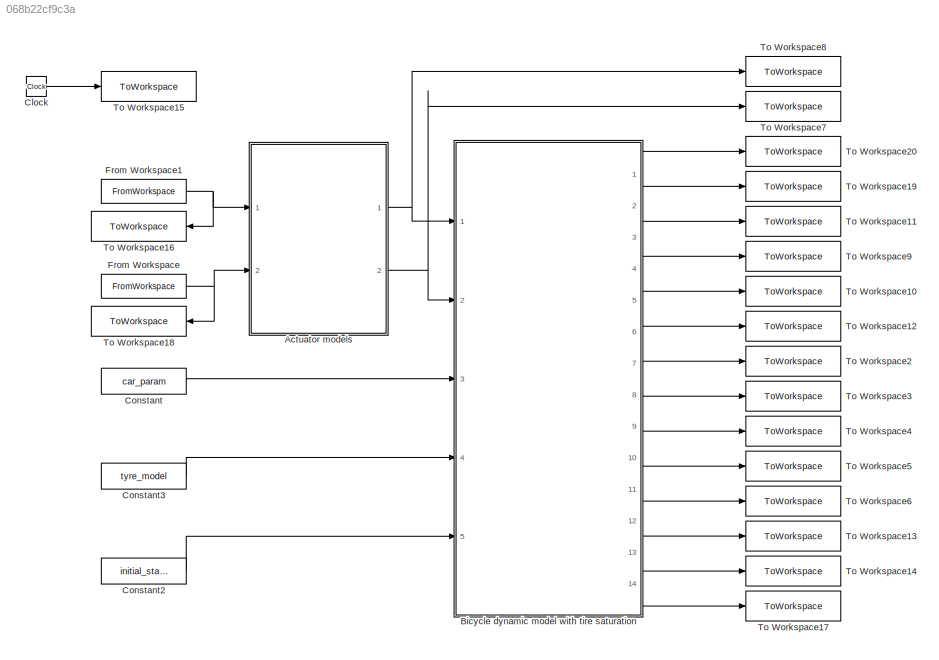
MODEL slx_068b22cf9c3a
KIND model
CONFIG AbsTol = auto
CONFIG EnableMultiTasking = off
CONFIG FixedStep = auto
CONFIG MaxStep = auto
CONFIG MinStep = auto
CONFIG RelTol = 1e-6
CONFIG SampleTimeConstraint = Unconstrained
CONFIG SolverName = ode45
CONFIG StartTime = 0.0
CONFIG StopTime = 25
WORKSPACE source: mxarray member
WORKSPACE Freq = 1
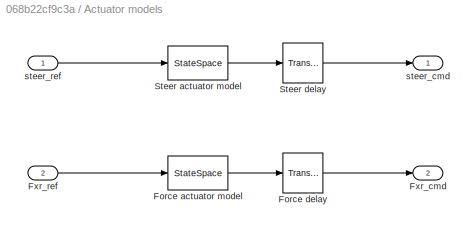
BLOCK [SubSystem] Actuator models
  Ports = [2, 2]
  RequestExecContextInheritance = off
BLOCK [StateSpace] Actuator models/Force actuator model
  A = [0, 1; -wn_force^2, -2*csi_force*wn_force]
  B = [0; mu_force*wn_force^2]
  C = [1, 0]
  D = 0
  InitialCondition = [force_initial, 0]
  Ports = [1, 1]
BLOCK [TransportDelay] Actuator models/Force delay
  DelayTime = tau_force
  InitialOutput = force_initial
  Ports = [1, 1]
BLOCK [Outport] Actuator models/Fxr_cmd
  Port = 2
BLOCK [Inport] Actuator models/Fxr_ref
  Port = 2
BLOCK [StateSpace] Actuator models/Steer actuator model
  A = [0, 1; -wn_steer^2, -2*csi_steer*wn_steer]
  B = [0; mu_steer*wn_steer^2]
  C = [1, 0]
  D = 0
  InitialCondition = [steer_initial, 0]
  Ports = [1, 1]
BLOCK [TransportDelay] Actuator models/Steer delay
  DelayTime = tau_steer
  InitialOutput = steer_initial
  Ports = [1, 1]
BLOCK [Outport] Actuator models/steer_cmd
BLOCK [Inport] Actuator models/steer_ref
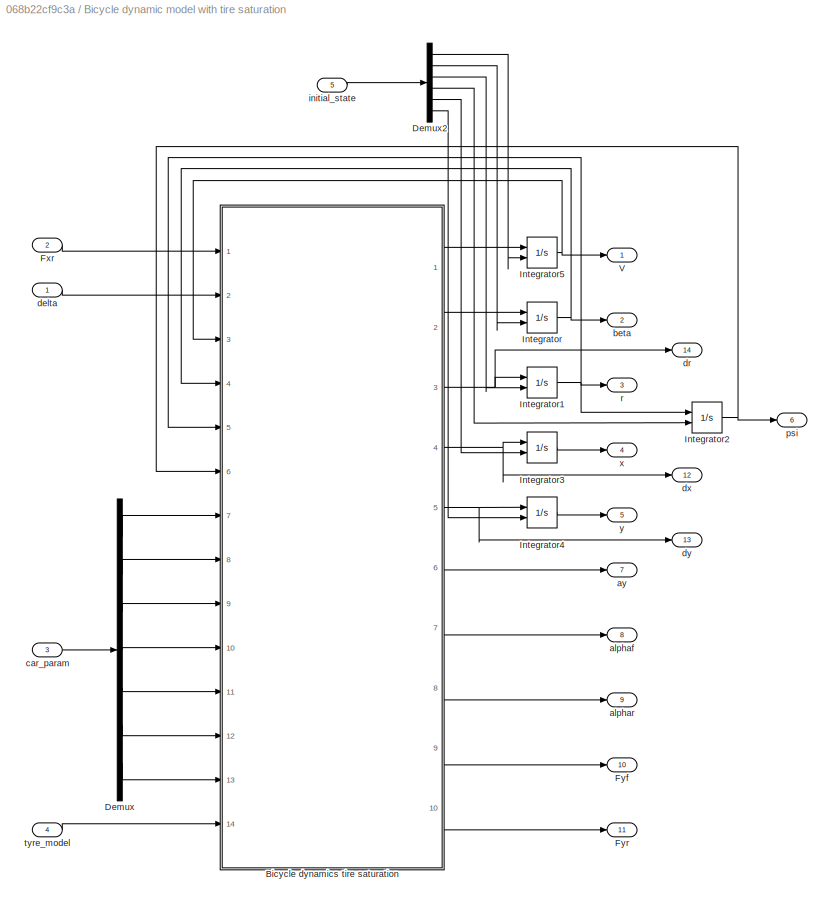
BLOCK [SubSystem] Bicycle dynamic model with tire saturation
  Ports = [5, 14]
  RequestExecContextInheritance = off
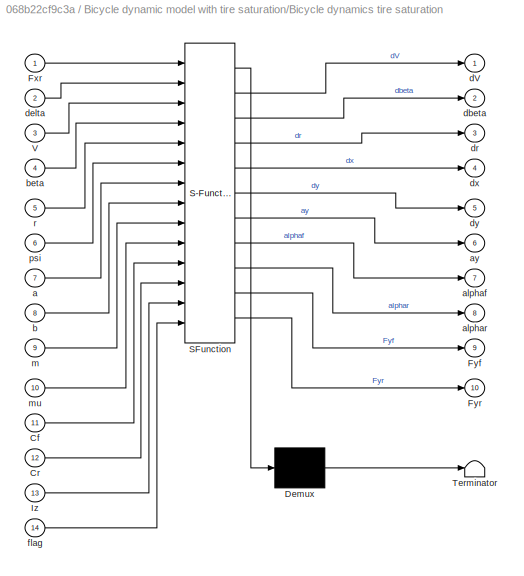
BLOCK [SubSystem] Bicycle dynamic model with tire saturation/Bicycle dynamics tire saturation
  ErrorFcn = Stateflow.Translate.translate
  PermitHierarchicalResolution = ExplicitOnly
  Ports = [14, 10]
  RequestExecContextInheritance = off
  SFBlockType = MATLAB Function
  TreatAsAtomicUnit = on
BLOCK [Demux] Bicycle dynamic model with tire saturation/Bicycle dynamics tire saturation/ Demux 
  Outputs = 1
  Ports = [1, 1]
BLOCK [S-Function] Bicycle dynamic model with tire saturation/Bicycle dynamics tire saturation/ SFunction 
  EnableBusSupport = on
  FunctionName = sf_sfun
  PortCounts = [14 11]
  Ports = [14, 11]
  SFcnIsStateOwnerBlock = off
  SFunctionDeploymentMode = off
  Tag = Stateflow S-Function 4
BLOCK [Terminator] Bicycle dynamic model with tire saturation/Bicycle dynamics tire saturation/ Terminator 
BLOCK [Inport] Bicycle dynamic model with tire saturation/Bicycle dynamics tire saturation/Cf
  Port = 11
BLOCK [Inport] Bicycle dynamic model with tire saturation/Bicycle dynamics tire saturation/Cr
  Port = 12
BLOCK [Inport] Bicycle dynamic model with tire saturation/Bicycle dynamics tire saturation/Fxr
BLOCK [Outport] Bicycle dynamic model with tire saturation/Bicycle dynamics tire saturation/Fyf
  Port = 9
BLOCK [Outport] Bicycle dynamic model with tire saturation/Bicycle dynamics tire saturation/Fyr
  Port = 10
BLOCK [Inport] Bicycle dynamic model with tire saturation/Bicycle dynamics tire saturation/Iz
  Port = 13
BLOCK [Inport] Bicycle dynamic model with tire saturation/Bicycle dynamics tire saturation/V
  Port = 3
BLOCK [Inport] Bicycle dynamic model with tire saturation/Bicycle dynamics tire saturation/a
  Port = 7
BLOCK [Outport] Bicycle dynamic model with tire saturation/Bicycle dynamics tire saturation/alphaf
  Port = 7
BLOCK [Outport] Bicycle dynamic model with tire saturation/Bicycle dynamics tire saturation/alphar
  Port = 8
BLOCK [Outport] Bicycle dynamic model with tire saturation/Bicycle dynamics tire saturation/ay
  Port = 6
BLOCK [Inport] Bicycle dynamic model with tire saturation/Bicycle dynamics tire saturation/b
  Port = 8
BLOCK [Inport] Bicycle dynamic model with tire saturation/Bicycle dynamics tire saturation/beta
  Port = 4
BLOCK [Outport] Bicycle dynamic model with tire saturation/Bicycle dynamics tire saturation/dV
BLOCK [Outport] Bicycle dynamic model with tire saturation/Bicycle dynamics tire saturation/dbeta
  Port = 2
BLOCK [Inport] Bicycle dynamic model with tire saturation/Bicycle dynamics tire saturation/delta
  Port = 2
BLOCK [Outport] Bicycle dynamic model with tire saturation/Bicycle dynamics tire saturation/dr
  Port = 3
  VectorParamsAs1DForOutWhenUnconnected = off
BLOCK [Outport] Bicycle dynamic model with tire saturation/Bicycle dynamics tire saturation/dx
  Port = 4
BLOCK [Outport] Bicycle dynamic model with tire saturation/Bicycle dynamics tire saturation/dy
  Port = 5
BLOCK [Inport] Bicycle dynamic model with tire saturation/Bicycle dynamics tire saturation/flag
  Port = 14
BLOCK [Inport] Bicycle dynamic model with tire saturation/Bicycle dynamics tire saturation/m
  Port = 9
BLOCK [Inport] Bicycle dynamic model with tire saturation/Bicycle dynamics tire saturation/mu
  Port = 10
BLOCK [Inport] Bicycle dynamic model with tire saturation/Bicycle dynamics tire saturation/psi
  Port = 6
BLOCK [Inport] Bicycle dynamic model with tire saturation/Bicycle dynamics tire saturation/r
  Port = 5
BLOCK [Demux] Bicycle dynamic model with tire saturation/Demux
  Outputs = 7
  Ports = [1, 7]
BLOCK [Demux] Bicycle dynamic model with tire saturation/Demux2
  Outputs = 6
  Ports = [1, 6]
BLOCK [Inport] Bicycle dynamic model with tire saturation/Fxr
  Port = 2
BLOCK [Outport] Bicycle dynamic model with tire saturation/Fyf
  Port = 10
BLOCK [Outport] Bicycle dynamic model with tire saturation/Fyr
  Port = 11
BLOCK [Integrator] Bicycle dynamic model with tire saturation/Integrator
  InitialConditionSource = external
  Ports = [2, 1]
BLOCK [Integrator] Bicycle dynamic model with tire saturation/Integrator1
  InitialConditionSource = external
  Ports = [2, 1]
BLOCK [Integrator] Bicycle dynamic model with tire saturation/Integrator2
  InitialConditionSource = external
  Ports = [2, 1]
BLOCK [Integrator] Bicycle dynamic model with tire saturation/Integrator3
  InitialConditionSource = external
  Ports = [2, 1]
BLOCK [Integrator] Bicycle dynamic model with tire saturation/Integrator4
  InitialConditionSource = external
  Ports = [2, 1]
BLOCK [Integrator] Bicycle dynamic model with tire saturation/Integrator5
  InitialConditionSource = external
  Ports = [2, 1]
BLOCK [Outport] Bicycle dynamic model with tire saturation/V
BLOCK [Outport] Bicycle dynamic model with tire saturation/alphaf
  Port = 8
BLOCK [Outport] Bicycle dynamic model with tire saturation/alphar
  Port = 9
BLOCK [Outport] Bicycle dynamic model with tire saturation/ay
  Port = 7
BLOCK [Outport] Bicycle dynamic model with tire saturation/beta
  Port = 2
BLOCK [Inport] Bicycle dynamic model with tire saturation/car_param
  Port = 3
BLOCK [Inport] Bicycle dynamic model with tire saturation/delta
BLOCK [Outport] Bicycle dynamic model with tire saturation/dr
  Port = 14
BLOCK [Outport] Bicycle dynamic model with tire saturation/dx
  Port = 12
BLOCK [Outport] Bicycle dynamic model with tire saturation/dy
  Port = 13
BLOCK [Inport] Bicycle dynamic model with tire saturation/initial_state 
  Port = 5
BLOCK [Outport] Bicycle dynamic model with tire saturation/psi
  Port = 6
BLOCK [Outport] Bicycle dynamic model with tire saturation/r
  Port = 3
BLOCK [Inport] Bicycle dynamic model with tire saturation/tyre_model
  Port = 4
BLOCK [Outport] Bicycle dynamic model with tire saturation/x
  Port = 4
BLOCK [Outport] Bicycle dynamic model with tire saturation/y
  Port = 5
BLOCK [Clock] Clock
BLOCK [Constant] Constant
  Value = car_param
BLOCK [Constant] Constant2
  Value = initial_state
BLOCK [Constant] Constant3
  Value = tyre_model
BLOCK [FromWorkspace] From Workspace
  VariableName = Fxr_ref
BLOCK [FromWorkspace] From Workspace1
  VariableName = steer_ref
BLOCK [ToWorkspace] To Workspace10
  FixptAsFi = on
  MaxDataPoints = inf
  Ports = [1]
  SampleTime = Ts
  Save2DSignal = 2-D array (concatenate along first dimension)
  VariableName = y
BLOCK [ToWorkspace] To Workspace11
  FixptAsFi = on
  MaxDataPoints = inf
  Ports = [1]
  SampleTime = Ts
  Save2DSignal = 2-D array (concatenate along first dimension)
  VariableName = r
BLOCK [ToWorkspace] To Workspace12
  FixptAsFi = on
  MaxDataPoints = inf
  Ports = [1]
  SampleTime = Ts
  Save2DSignal = 2-D array (concatenate along first dimension)
  VariableName = psi
BLOCK [ToWorkspace] To Workspace13
  FixptAsFi = on
  MaxDataPoints = inf
  Ports = [1]
  SampleTime = Ts
  Save2DSignal = 2-D array (concatenate along first dimension)
  VariableName = dx
BLOCK [ToWorkspace] To Workspace14
  FixptAsFi = on
  MaxDataPoints = inf
  Ports = [1]
  SampleTime = Ts
  Save2DSignal = 2-D array (concatenate along first dimension)
  VariableName = dy
BLOCK [ToWorkspace] To Workspace15
  FixptAsFi = on
  MaxDataPoints = inf
  Ports = [1]
  SampleTime = Ts
  Save2DSignal = 2-D array (concatenate along first dimension)
  VariableName = time
BLOCK [ToWorkspace] To Workspace16
  FixptAsFi = on
  MaxDataPoints = inf
  Ports = [1]
  SampleTime = Ts
  Save2DSignal = 2-D array (concatenate along first dimension)
  VariableName = steer_ref
BLOCK [ToWorkspace] To Workspace17
  FixptAsFi = on
  MaxDataPoints = inf
  Ports = [1]
  SampleTime = Ts
  Save2DSignal = 2-D array (concatenate along first dimension)
  VariableName = dr
BLOCK [ToWorkspace] To Workspace18
  FixptAsFi = on
  MaxDataPoints = inf
  Ports = [1]
  SampleTime = Ts
  Save2DSignal = 2-D array (concatenate along first dimension)
  VariableName = Fxr_ref
BLOCK [ToWorkspace] To Workspace19
  FixptAsFi = on
  MaxDataPoints = inf
  Ports = [1]
  SampleTime = Ts
  Save2DSignal = 2-D array (concatenate along first dimension)
  VariableName = beta
BLOCK [ToWorkspace] To Workspace2
  FixptAsFi = on
  MaxDataPoints = inf
  Ports = [1]
  SampleTime = Ts
  Save2DSignal = 2-D array (concatenate along first dimension)
  VariableName = ay
BLOCK [ToWorkspace] To Workspace20
  FixptAsFi = on
  MaxDataPoints = inf
  Ports = [1]
  SampleTime = Ts
  Save2DSignal = 2-D array (concatenate along first dimension)
  VariableName = V
BLOCK [ToWorkspace] To Workspace3
  FixptAsFi = on
  MaxDataPoints = inf
  Ports = [1]
  SampleTime = Ts
  Save2DSignal = 2-D array (concatenate along first dimension)
  VariableName = alphaf
BLOCK [ToWorkspace] To Workspace4
  FixptAsFi = on
  MaxDataPoints = inf
  Ports = [1]
  SampleTime = Ts
  Save2DSignal = 2-D array (concatenate along first dimension)
  VariableName = alphar
BLOCK [ToWorkspace] To Workspace5
  FixptAsFi = on
  MaxDataPoints = inf
  Ports = [1]
  SampleTime = Ts
  Save2DSignal = 2-D array (concatenate along first dimension)
  VariableName = Fyf
BLOCK [ToWorkspace] To Workspace6
  FixptAsFi = on
  MaxDataPoints = inf
  Ports = [1]
  SampleTime = Ts
  Save2DSignal = 2-D array (concatenate along first dimension)
  VariableName = Fyr
BLOCK [ToWorkspace] To Workspace7
  FixptAsFi = on
  MaxDataPoints = inf
  Ports = [1]
  SampleTime = Ts
  Save2DSignal = 2-D array (concatenate along first dimension)
  VariableName = Fxr_cmd
BLOCK [ToWorkspace] To Workspace8
  FixptAsFi = on
  MaxDataPoints = inf
  Ports = [1]
  SampleTime = Ts
  Save2DSignal = 2-D array (concatenate along first dimension)
  VariableName = steer_cmd
BLOCK [ToWorkspace] To Workspace9
  FixptAsFi = on
  MaxDataPoints = inf
  Ports = [1]
  SampleTime = Ts
  Save2DSignal = 2-D array (concatenate along first dimension)
  VariableName = x
LINE Actuator models/Force actuator model:1 -> Actuator models/Force delay:1
LINE Actuator models/Force delay:1 -> Actuator models/Fxr_cmd:1
LINE Actuator models/Fxr_ref:1 -> Actuator models/Force actuator model:1
LINE Actuator models/Steer actuator model:1 -> Actuator models/Steer delay:1
LINE Actuator models/Steer delay:1 -> Actuator models/steer_cmd:1
LINE Actuator models/steer_ref:1 -> Actuator models/Steer actuator model:1
NET Actuator models:1 -> Bicycle dynamic model with tire saturation:1, To Workspace8:1
NET Actuator models:2 -> Bicycle dynamic model with tire saturation:2, To Workspace7:1
LINE Bicycle dynamic model with tire saturation/Bicycle dynamics tire saturation:1 -> Bicycle dynamic model with tire saturation/Integrator5:1
LINE Bicycle dynamic model with tire saturation/Bicycle dynamics tire saturation:10 -> Bicycle dynamic model with tire saturation/Fyr:1
LINE Bicycle dynamic model with tire saturation/Bicycle dynamics tire saturation:2 -> Bicycle dynamic model with tire saturation/Integrator:1
NET Bicycle dynamic model with tire saturation/Bicycle dynamics tire saturation:3 -> Bicycle dynamic model with tire saturation/Integrator1:1, Bicycle dynamic model with tire saturation/dr:1
NET Bicycle dynamic model with tire saturation/Bicycle dynamics tire saturation:4 -> Bicycle dynamic model with tire saturation/Integrator3:1, Bicycle dynamic model with tire saturation/dx:1
NET Bicycle dynamic model with tire saturation/Bicycle dynamics tire saturation:5 -> Bicycle dynamic model with tire saturation/Integrator4:1, Bicycle dynamic model with tire saturation/dy:1
LINE Bicycle dynamic model with tire saturation/Bicycle dynamics tire saturation:6 -> Bicycle dynamic model with tire saturation/ay:1
LINE Bicycle dynamic model with tire saturation/Bicycle dynamics tire saturation:7 -> Bicycle dynamic model with tire saturation/alphaf:1
LINE Bicycle dynamic model with tire saturation/Bicycle dynamics tire saturation:8 -> Bicycle dynamic model with tire saturation/alphar:1
LINE Bicycle dynamic model with tire saturation/Bicycle dynamics tire saturation:9 -> Bicycle dynamic model with tire saturation/Fyf:1
LINE Bicycle dynamic model with tire saturation/Demux2:1 -> Bicycle dynamic model with tire saturation/Integrator5:2
LINE Bicycle dynamic model with tire saturation/Demux2:2 -> Bicycle dynamic model with tire saturation/Integrator:2
LINE Bicycle dynamic model with tire saturation/Demux2:3 -> Bicycle dynamic model with tire saturation/Integrator1:2
LINE Bicycle dynamic model with tire saturation/Demux2:4 -> Bicycle dynamic model with tire saturation/Integrator2:2
LINE Bicycle dynamic model with tire saturation/Demux2:5 -> Bicycle dynamic model with tire saturation/Integrator3:2
LINE Bicycle dynamic model with tire saturation/Demux2:6 -> Bicycle dynamic model with tire saturation/Integrator4:2
LINE Bicycle dynamic model with tire saturation/Demux:1 -> Bicycle dynamic model with tire saturation/Bicycle dynamics tire saturation:7
LINE Bicycle dynamic model with tire saturation/Demux:2 -> Bicycle dynamic model with tire saturation/Bicycle dynamics tire saturation:8
LINE Bicycle dynamic model with tire saturation/Demux:3 -> Bicycle dynamic model with tire saturation/Bicycle dynamics tire saturation:9
LINE Bicycle dynamic model with tire saturation/Demux:4 -> Bicycle dynamic model with tire saturation/Bicycle dynamics tire saturation:10
LINE Bicycle dynamic model with tire saturation/Demux:5 -> Bicycle dynamic model with tire saturation/Bicycle dynamics tire saturation:11
LINE Bicycle dynamic model with tire saturation/Demux:6 -> Bicycle dynamic model with tire saturation/Bicycle dynamics tire saturation:12
LINE Bicycle dynamic model with tire saturation/Demux:7 -> Bicycle dynamic model with tire saturation/Bicycle dynamics tire saturation:13
LINE Bicycle dynamic model with tire saturation/Fxr:1 -> Bicycle dynamic model with tire saturation/Bicycle dynamics tire saturation:1
NET Bicycle dynamic model with tire saturation/Integrator1:1 -> Bicycle dynamic model with tire saturation/Bicycle dynamics tire saturation:5, Bicycle dynamic model with tire saturation/Integrator2:1, Bicycle dynamic model with tire saturation/r:1
NET Bicycle dynamic model with tire saturation/Integrator2:1 -> Bicycle dynamic model with tire saturation/Bicycle dynamics tire saturation:6, Bicycle dynamic model with tire saturation/psi:1
LINE Bicycle dynamic model with tire saturation/Integrator3:1 -> Bicycle dynamic model with tire saturation/x:1
LINE Bicycle dynamic model with tire saturation/Integrator4:1 -> Bicycle dynamic model with tire saturation/y:1
NET Bicycle dynamic model with tire saturation/Integrator5:1 -> Bicycle dynamic model with tire saturation/Bicycle dynamics tire saturation:3, Bicycle dynamic model with tire saturation/V:1
NET Bicycle dynamic model with tire saturation/Integrator:1 -> Bicycle dynamic model with tire saturation/Bicycle dynamics tire saturation:4, Bicycle dynamic model with tire saturation/beta:1
LINE Bicycle dynamic model with tire saturation/car_param:1 -> Bicycle dynamic model with tire saturation/Demux:1
LINE Bicycle dynamic model with tire saturation/delta:1 -> Bicycle dynamic model with tire saturation/Bicycle dynamics tire saturation:2
LINE Bicycle dynamic model with tire saturation/initial_state :1 -> Bicycle dynamic model with tire saturation/Demux2:1
LINE Bicycle dynamic model with tire saturation/tyre_model:1 -> Bicycle dynamic model with tire saturation/Bicycle dynamics tire saturation:14
LINE Bicycle dynamic model with tire saturation:1 -> To Workspace20:1
LINE Bicycle dynamic model with tire saturation:10 -> To Workspace5:1
LINE Bicycle dynamic model with tire saturation:11 -> To Workspace6:1
LINE Bicycle dynamic model with tire saturation:12 -> To Workspace13:1
LINE Bicycle dynamic model with tire saturation:13 -> To Workspace14:1
LINE Bicycle dynamic model with tire saturation:14 -> To Workspace17:1
LINE Bicycle dynamic model with tire saturation:2 -> To Workspace19:1
LINE Bicycle dynamic model with tire saturation:3 -> To Workspace11:1
LINE Bicycle dynamic model with tire saturation:4 -> To Workspace9:1
LINE Bicycle dynamic model with tire saturation:5 -> To Workspace10:1
LINE Bicycle dynamic model with tire saturation:6 -> To Workspace12:1
LINE Bicycle dynamic model with tire saturation:7 -> To Workspace2:1
LINE Bicycle dynamic model with tire saturation:8 -> To Workspace3:1
LINE Bicycle dynamic model with tire saturation:9 -> To Workspace4:1
LINE Clock:1 -> To Workspace15:1
LINE Constant2:1 -> Bicycle dynamic model with tire saturation:5
LINE Constant3:1 -> Bicycle dynamic model with tire saturation:4
LINE Constant:1 -> Bicycle dynamic model with tire saturation:3
NET From Workspace1:1 -> Actuator models:1, To Workspace16:1
NET From Workspace:1 -> Actuator models:2, To Workspace18:1
note: NET lines group one-source signal fan-out (src -> all destinations, sorted); 1:1 wires keep LINE
CHART Bicycle dynamic
model with tire saturation/Bicycle dynamics tire saturation states=1 transitions=1
  STATE_LABEL 'eML_blk_kernel()'
  STATE_LABEL 'SCRIPT:\nfunction [dV,dbeta,dr,dx,dy,ay,alphaf,alphar,Fyf,Fyr]  = bicycle_dynamics(Fxr, delta, V, beta, r, psi, a, b, m, mu, Cf, Cr, Iz, flag)\n\nFzf = m*9.81*b/(a+b);\nFzr = m*9.81*a/(a+b);\n\nif (abs(V*cos(beta))<=0.01)\n    alphaf = 0;\n    alphar = 0;\nelse\n    alphaf = atan2(V*sin(beta)+a*r,V*cos(beta))-delta;\n    alphar = atan2(V*sin(beta)-b*r,V*cos(beta));\nend\n\nzf = tan(alphaf);\nzr = tan(alphar);\n\nz...<+1103ch>'
CHART  states=0 transitions=0
